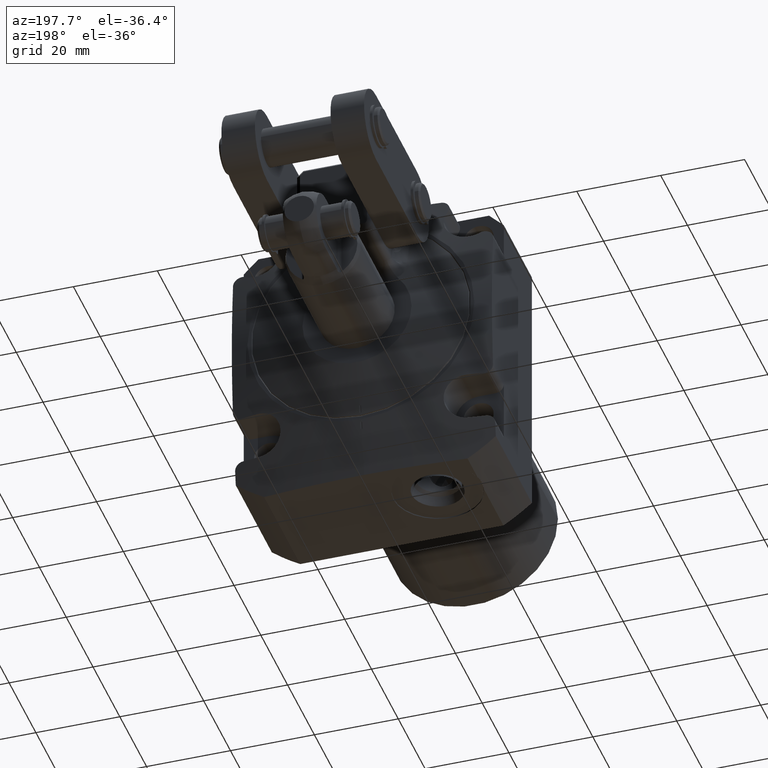
[diagram: clean part render]
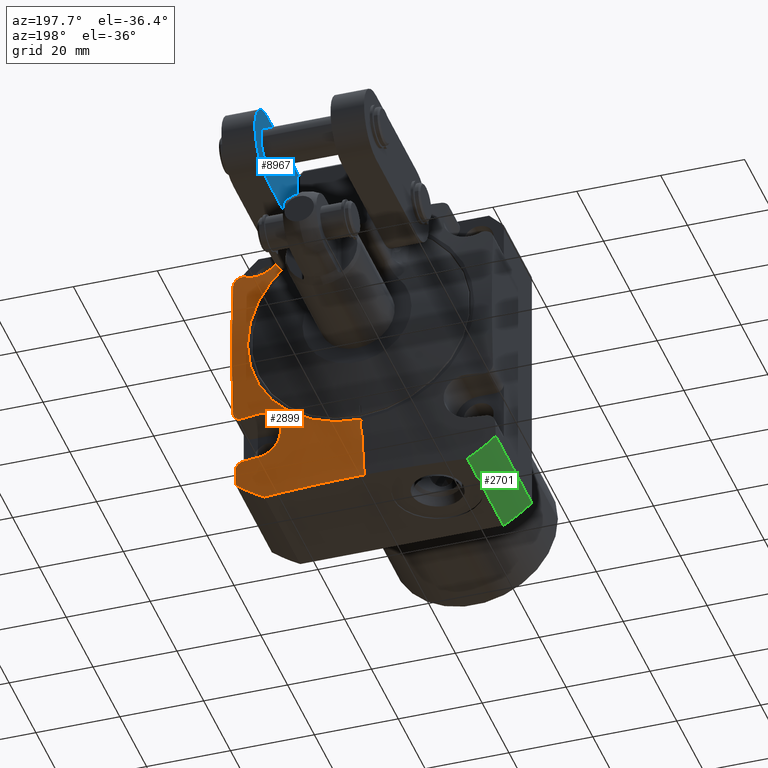
[diagram: same view with three faces highlighted in distinct colors, each labeled with its STEP entity id]
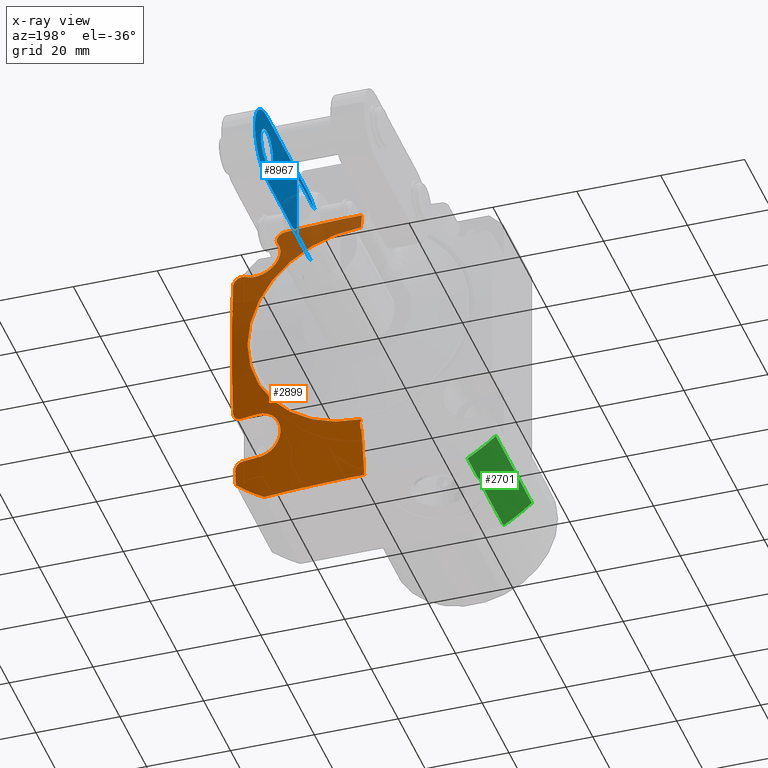
[diagram: x-ray of the same camera — body ghosted, the three highlighted faces saturated]
A machine part, auxiliary view with three faces highlighted in distinct colors.
The next image is the same camera in x-ray (body ghosted, the three faces saturated) — at least one of them is partly hidden behind the body in this view.
Their STEP definitions:

[orange] entity #2899 — the highlighted conical surface has half-angle 80 deg.
#714=CARTESIAN_POINT('',(0.E0,1.060175145626E0,0.E0));
#715=DIRECTION('',(0.E0,-1.E0,0.E0));
#716=DIRECTION('',(5.089433760253E-1,0.E0,-8.608E-1));
#717=AXIS2_PLACEMENT_3D('',#714,#715,#716);
#931=CARTESIAN_POINT('',(1.2204E0,1.060175145626E0,-1.423463677092E0));
#932=CARTESIAN_POINT('',(1.2204E0,1.063421422799E0,-1.399213120586E0));
#933=CARTESIAN_POINT('',(1.2204E0,1.069742382103E0,-1.351468564160E0));
#934=CARTESIAN_POINT('',(1.2204E0,1.075721235699E0,-1.305237271235E0));
#935=CARTESIAN_POINT('',(1.2204E0,1.078625608446E0,-1.2825E0));
#940=CARTESIAN_POINT('',(1.1414E0,1.098318896118E0,-1.2035E0));
#941=CARTESIAN_POINT('',(1.149647818973E0,1.097318126325E0,-1.2035E0));
#942=CARTESIAN_POINT('',(1.166153438891E0,1.094971450994E0,-1.206098933734E0));
#943=CARTESIAN_POINT('',(1.188614549425E0,1.090764848129E0,-1.217521549491E0));
#944=CARTESIAN_POINT('',(1.206424666769E0,1.086320344520E0,-1.235359772559E0));
#945=CARTESIAN_POINT('',(1.217797744459E0,1.082093038357E0,-1.257755515178E0));
#946=CARTESIAN_POINT('',(1.2204E0,1.079679064940E0,-1.274252874675E0));
#947=CARTESIAN_POINT('',(1.2204E0,1.078625608446E0,-1.2825E0));
#952=CARTESIAN_POINT('',(9.845E-1,1.116620899816E0,-1.2035E0));
#953=CARTESIAN_POINT('',(1.009786784821E0,1.113797767941E0,-1.2035E0));
#954=CARTESIAN_POINT('',(1.061223615380E0,1.107924712293E0,-1.2035E0));
#955=CARTESIAN_POINT('',(1.114386804775E0,1.101596609883E0,-1.2035E0));
#956=CARTESIAN_POINT('',(1.1414E0,1.098318896118E0,-1.2035E0));
#961=CARTESIAN_POINT('',(9.845E-1,1.170892829914E0,-7.655E-1));
#962=CARTESIAN_POINT('',(9.668143304058E-1,1.173354663069E0,-7.655E-1));
#963=CARTESIAN_POINT('',(9.315557886835E-1,1.177747081485E0,
-7.698032248155E-1));
#964=CARTESIAN_POINT('',(8.819775922452E-1,1.182234042671E0,
-7.885952571486E-1));
#965=CARTESIAN_POINT('',(8.384517070441E-1,1.184250302153E0,
-8.185069591678E-1));
#966=CARTESIAN_POINT('',(8.033352329886E-1,1.183633077884E0,
-8.577768332006E-1));
#967=CARTESIAN_POINT('',(7.784923121543E-1,1.180455211033E0,
-9.042053155698E-1));
#968=CARTESIAN_POINT('',(7.652755951321E-1,1.174960402367E0,
-9.555456877013E-1));
#969=CARTESIAN_POINT('',(7.646895459464E-1,1.167601425565E0,-1.008775834169E0));
#970=CARTESIAN_POINT('',(7.769415963294E-1,1.158927117389E0,-1.060904355173E0));
#971=CARTESIAN_POINT('',(8.015274974601E-1,1.149546714809E0,-1.108772061912E0));
#972=CARTESIAN_POINT('',(8.369666188078E-1,1.140096513913E0,-1.149293640645E0));
#973=CARTESIAN_POINT('',(8.811801277854E-1,1.131109945977E0,-1.180070046790E0));
#974=CARTESIAN_POINT('',(9.314120125367E-1,1.123070296904E0,-1.199201424619E0));
#975=CARTESIAN_POINT('',(9.668217543204E-1,1.118594579713E0,-1.2035E0));
#976=CARTESIAN_POINT('',(9.845E-1,1.116620899816E0,-1.2035E0));
#981=CARTESIAN_POINT('',(9.845E-1,1.170892829914E0,-7.655E-1));
#982=CARTESIAN_POINT('',(1.009208989631E0,1.167453355395E0,-7.655E-1));
#983=CARTESIAN_POINT('',(1.060068193900E0,1.160276079970E0,-7.655E-1));
#984=CARTESIAN_POINT('',(1.113809162796E0,1.152497149828E0,-7.655E-1));
#985=CARTESIAN_POINT('',(1.1414E0,1.148456694158E0,-7.655E-1));
#990=CARTESIAN_POINT('',(1.2204E0,1.143889002284E0,-6.865E-1));
#991=CARTESIAN_POINT('',(1.2204E0,1.143173726617E0,-6.947739921969E-1));
#992=CARTESIAN_POINT('',(1.217779690736E0,1.142126902009E0,-7.113075880267E-1));
#993=CARTESIAN_POINT('',(1.206396554363E0,1.141833451756E0,-7.336605200255E-1));
#994=CARTESIAN_POINT('',(1.188699582864E0,1.142835760369E0,-7.513968622548E-1));
#995=CARTESIAN_POINT('',(1.166340169948E0,1.145056959626E0,-7.628442139112E-1));
#996=CARTESIAN_POINT('',(1.149730314378E0,1.147236786776E0,-7.655E-1));
#997=CARTESIAN_POINT('',(1.1414E0,1.148456694158E0,-7.655E-1));
#1002=CARTESIAN_POINT('',(1.2204E0,1.143889002284E0,-6.865E-1));
#1003=CARTESIAN_POINT('',(1.2204E0,1.148546499479E0,-6.326241347934E-1));
#1004=CARTESIAN_POINT('',(1.2204E0,1.156939755457E0,-5.258073881625E-1));
#1005=CARTESIAN_POINT('',(1.2204E0,1.166441903024E0,-3.699236759738E-1));
#1006=CARTESIAN_POINT('',(1.2204E0,1.172891769748E0,-2.136911971545E-1));
#1007=CARTESIAN_POINT('',(1.2204E0,1.175962838828E0,-5.671395394722E-2));
#1008=CARTESIAN_POINT('',(1.2204E0,1.175459219762E0,1.006356168126E-1));
#1009=CARTESIAN_POINT('',(1.2204E0,1.171420262719E0,2.573233764488E-1));
#1010=CARTESIAN_POINT('',(1.2204E0,1.164089717237E0,4.132930508962E-1));
#1011=CARTESIAN_POINT('',(1.2204E0,1.153772732874E0,5.694767572134E-1));
#1012=CARTESIAN_POINT('',(1.2204E0,1.144852884703E0,6.768829739693E-1));
#1013=CARTESIAN_POINT('',(1.2204E0,1.139935231463E0,7.311496694299E-1));
#1018=CARTESIAN_POINT('',(1.099805704698E0,1.151160175604E0,7.983130120978E-1));
#1019=CARTESIAN_POINT('',(1.106687682307E0,1.149736679403E0,8.025750246413E-1));
#1020=CARTESIAN_POINT('',(1.121714485795E0,1.146933751959E0,8.089378837423E-1));
#1021=CARTESIAN_POINT('',(1.145998693723E0,1.143216238925E0,8.112463430883E-1));
#1022=CARTESIAN_POINT('',(1.169709458597E0,1.140301286755E0,8.062040799562E-1));
#1023=CARTESIAN_POINT('',(1.190783889815E0,1.138400543230E0,7.943591205923E-1));
#1024=CARTESIAN_POINT('',(1.207362850826E0,1.137654441237E0,7.767867941637E-1));
#1025=CARTESIAN_POINT('',(1.217957723005E0,1.138117197337E0,7.550904486226E-1));
#1026=CARTESIAN_POINT('',(1.2204E0,1.139211472772E0,7.391364042759E-1));
#1027=CARTESIAN_POINT('',(1.2204E0,1.139935231463E0,7.311496694299E-1));
#1032=CARTESIAN_POINT('',(7.981312834197E-1,1.151220946163E0,1.099511744966E0));
#1033=CARTESIAN_POINT('',(7.894609193710E-1,1.154123872259E0,1.085462009259E0));
#1034=CARTESIAN_POINT('',(7.753496372646E-1,1.159867103217E0,1.055462981855E0));
#1035=CARTESIAN_POINT('',(7.647945247882E-1,1.167839744292E0,1.006986781389E0));
#1036=CARTESIAN_POINT('',(7.653153428927E-1,1.174679013903E0,
9.575181744862E-1));
#1037=CARTESIAN_POINT('',(7.767571870162E-1,1.179916252696E0,
9.096517609083E-1));
#1038=CARTESIAN_POINT('',(7.983328507148E-1,1.183187631600E0,
8.657890649145E-1));
#1039=CARTESIAN_POINT('',(8.288943967029E-1,1.184279626647E0,
8.278674803769E-1));
#1040=CARTESIAN_POINT('',(8.669601251099E-1,1.183122291722E0,
7.976035423600E-1));
#1041=CARTESIAN_POINT('',(9.107718433823E-1,1.179808812352E0,
7.763761456664E-1));
#1042=CARTESIAN_POINT('',(9.584282178444E-1,1.174562815118E0,
7.652262813753E-1));
#1043=CARTESIAN_POINT('',(1.007628899861E0,1.167740237262E0,7.648791955473E-1));
#1044=CARTESIAN_POINT('',(1.055884556483E0,1.159790836035E0,7.755054912923E-1));
#1045=CARTESIAN_POINT('',(1.085790802442E0,1.154059074911E0,7.896335753704E-1));
#1046=CARTESIAN_POINT('',(1.099805704698E0,1.151160175604E0,7.983130120978E-1));
#1051=CARTESIAN_POINT('',(7.309023856579E-1,1.140018143830E0,1.22E0));
#1052=CARTESIAN_POINT('',(7.388832443451E-1,1.139294923201E0,1.22E0));
#1053=CARTESIAN_POINT('',(7.548255635522E-1,1.138201195409E0,1.217561347145E0));
#1054=CARTESIAN_POINT('',(7.765091805685E-1,1.137737441018E0,1.206981644710E0));
#1055=CARTESIAN_POINT('',(7.940774391229E-1,1.138480748190E0,1.190424952522E0));
#1056=CARTESIAN_POINT('',(8.059298247709E-1,1.140377184131E0,1.169375714302E0));
#1057=CARTESIAN_POINT('',(8.109920010367E-1,1.143286847002E0,1.145688176956E0));
#1058=CARTESIAN_POINT('',(8.087152687614E-1,1.146998850180E0,1.121419918563E0));
#1059=CARTESIAN_POINT('',(8.023792531289E-1,1.149798682686E0,1.106395291190E0));
#1060=CARTESIAN_POINT('',(7.981312834197E-1,1.151220946163E0,1.099511744966E0));
#1065=CARTESIAN_POINT('',(7.309023856579E-1,1.140018143830E0,1.22E0));
#1066=CARTESIAN_POINT('',(6.816108381505E-1,1.144484914314E0,1.22E0));
#1067=CARTESIAN_POINT('',(5.835666929756E-1,1.152700395229E0,1.22E0));
#1068=CARTESIAN_POINT('',(4.391587558445E-1,1.162574631623E0,1.22E0));
#1069=CARTESIAN_POINT('',(2.942020459427E-1,1.169973626509E0,1.22E0));
#1070=CARTESIAN_POINT('',(1.477942982665E-1,1.174607632466E0,1.22E0));
#1071=CARTESIAN_POINT('',(4.940557540758E-2,1.175669317990E0,1.22E0));
#1072=CARTESIAN_POINT('',(0.E0,1.175669317990E0,1.22E0));
#1077=CARTESIAN_POINT('',(9.581894481621E-3,1.197904117912E0,
-1.093858216876E0));
#1078=CARTESIAN_POINT('',(9.581856382222E-3,1.198227646636E0,
-1.092023324248E0));
#1079=CARTESIAN_POINT('',(8.654541716035E-3,1.198784797667E0,
-1.088872315171E0));
#1080=CARTESIAN_POINT('',(4.848736062113E-3,1.199433253563E0,
-1.085219994765E0));
#1081=CARTESIAN_POINT('',(1.769691299536E-3,1.199579130900E0,
-1.084400712734E0));
#1082=CARTESIAN_POINT('',(0.E0,1.199579130900E0,-1.084400712734E0));
#1087=CARTESIAN_POINT('',(9.583054859522E-3,1.187521949368E0,
-1.152740554533E0));
#1088=CARTESIAN_POINT('',(9.582932193043E-3,1.188678350267E0,
-1.146182053536E0));
#1089=CARTESIAN_POINT('',(9.582682887297E-3,1.190989267719E0,
-1.133075730910E0));
#1090=CARTESIAN_POINT('',(9.582296413478E-3,1.194449990667E0,
-1.113448285042E0));
#1091=CARTESIAN_POINT('',(9.582029995993E-3,1.196753370346E0,
-1.100384679821E0));
#1092=CARTESIAN_POINT('',(9.581894481621E-3,1.197904117912E0,
-1.093858216876E0));
#1097=CARTESIAN_POINT('',(0.E0,1.185860924864E0,-1.162200525222E0));
#1098=CARTESIAN_POINT('',(1.290244222060E-3,1.185860924864E0,
-1.162200525222E0));
#1099=CARTESIAN_POINT('',(3.677470122624E-3,1.185944429979E0,
-1.161722825721E0));
#1100=CARTESIAN_POINT('',(6.894440095293E-3,1.186302944848E0,
-1.159674332463E0));
#1101=CARTESIAN_POINT('',(9.060433416783E-3,1.186861269840E0,
-1.156492082173E0));
#1102=CARTESIAN_POINT('',(9.583079660779E-3,1.187288143069E0,
-1.154066581559E0));
#1103=CARTESIAN_POINT('',(9.583054859522E-3,1.187521949368E0,
-1.152740554533E0));
#1108=CARTESIAN_POINT('',(0.E0,1.106196487591E0,-1.614E0));
#1109=CARTESIAN_POINT('',(8.026069538089E-2,1.106196487591E0,-1.614E0));
#1110=CARTESIAN_POINT('',(2.400798916781E-1,1.104076970360E0,-1.614E0));
#1111=CARTESIAN_POINT('',(4.779586701204E-1,1.094875415823E0,-1.614E0));
#1112=CARTESIAN_POINT('',(7.132182849738E-1,1.080432964392E0,-1.614E0));
#1113=CARTESIAN_POINT('',(8.736129599570E-1,1.067413239610E0,-1.614E0));
#1114=CARTESIAN_POINT('',(9.542688300474E-1,1.060175145626E0,-1.614E0));
#1403=CARTESIAN_POINT('',(0.E0,1.106196487591E0,-1.614E0));
#1408=DIRECTION('',(0.E0,-1.736481776669E-1,-9.848077530122E-1));
#1409=VECTOR('',#1408,4.587692099253E-1);
#1410=CARTESIAN_POINT('',(0.E0,1.185860924864E0,-1.162200525222E0));
#1411=LINE('',#1410,#1409);
#1447=DIRECTION('',(-1.575943921262E-14,-1.736481776669E-1,-9.848077530122E-1));
#1448=VECTOR('',#1447,1.97E-2);
#1449=CARTESIAN_POINT('',(0.E0,1.203E0,-1.065E0));
#1450=LINE('',#1449,#1448);
#1454=DIRECTION('',(0.E0,-1.736481776669E-1,9.848077530122E-1));
#1455=VECTOR('',#1454,1.573911248423E-1);
#1456=CARTESIAN_POINT('',(0.E0,1.203E0,1.065E0));
#1457=LINE('',#1456,#1455);
#1645=CARTESIAN_POINT('',(0.E0,1.203E0,0.E0));
#1646=DIRECTION('',(0.E0,-1.E0,0.E0));
#1647=DIRECTION('',(0.E0,0.E0,-1.E0));
#1648=AXIS2_PLACEMENT_3D('',#1645,#1646,#1647);
#1894=CARTESIAN_POINT('',(9.542688300474E-1,1.060175145626E0,-1.614E0));
#1895=VERTEX_POINT('',#1894);
#1896=CARTESIAN_POINT('',(1.2204E0,1.060175145626E0,-1.423463677092E0));
#1897=VERTEX_POINT('',#1896);
#1952=CARTESIAN_POINT('',(0.E0,1.203E0,-1.065E0));
#1953=CARTESIAN_POINT('',(0.E0,1.203E0,1.065E0));
#1954=VERTEX_POINT('',#1952);
#1955=VERTEX_POINT('',#1953);
#1956=VERTEX_POINT('',#1403);
#1959=CARTESIAN_POINT('',(0.E0,1.175669317990E0,1.22E0));
#1960=VERTEX_POINT('',#1959);
#1990=CARTESIAN_POINT('',(9.845E-1,1.170892829914E0,-7.655E-1));
#1991=VERTEX_POINT('',#1990);
#1992=CARTESIAN_POINT('',(9.845E-1,1.116620899816E0,-1.2035E0));
#1993=VERTEX_POINT('',#1992);
#2006=CARTESIAN_POINT('',(1.099805704698E0,1.151160175604E0,7.983130120978E-1));
#2008=VERTEX_POINT('',#2006);
#2010=VERTEX_POINT('',#1027);
#2013=CARTESIAN_POINT('',(1.1414E0,1.148456694158E0,-7.655E-1));
#2014=VERTEX_POINT('',#2013);
#2015=CARTESIAN_POINT('',(1.2204E0,1.143889002284E0,-6.865E-1));
#2016=VERTEX_POINT('',#2015);
#2021=VERTEX_POINT('',#1032);
#2048=VERTEX_POINT('',#1077);
#2049=VERTEX_POINT('',#1082);
#2050=VERTEX_POINT('',#1087);
#2051=VERTEX_POINT('',#1097);
#2059=VERTEX_POINT('',#935);
#2060=VERTEX_POINT('',#956);
#2144=VERTEX_POINT('',#1051);
#2858=CARTESIAN_POINT('',(0.E0,1.131587572813E0,0.E0));
#2859=DIRECTION('',(0.E0,-1.E0,0.E0));
#2860=DIRECTION('',(0.E0,0.E0,1.E0));
#2861=AXIS2_PLACEMENT_3D('',#2858,#2859,#2860);
#2862=CONICAL_SURFACE('',#2861,1.47E0,8.E1);
#2863=ORIENTED_EDGE('',*,*,#2711,.T.);
#2865=ORIENTED_EDGE('',*,*,#2864,.F.);
#2867=ORIENTED_EDGE('',*,*,#2866,.F.);
#2869=ORIENTED_EDGE('',*,*,#2868,.F.);
#2871=ORIENTED_EDGE('',*,*,#2870,.T.);
#2873=ORIENTED_EDGE('',*,*,#2872,.F.);
#2874=ORIENTED_EDGE('',*,*,#2721,.T.);
#2875=ORIENTED_EDGE('',*,*,#2851,.F.);
#2876=ORIENTED_EDGE('',*,*,#2840,.F.);
#2878=ORIENTED_EDGE('',*,*,#2877,.F.);
#2880=ORIENTED_EDGE('',*,*,#2879,.T.);
#2882=ORIENTED_EDGE('',*,*,#2881,.F.);
#2884=ORIENTED_EDGE('',*,*,#2883,.F.);
#2886=ORIENTED_EDGE('',*,*,#2885,.T.);
#2888=ORIENTED_EDGE('',*,*,#2887,.F.);
#2890=ORIENTED_EDGE('',*,*,#2889,.F.);
#2892=ORIENTED_EDGE('',*,*,#2891,.F.);
#2894=ORIENTED_EDGE('',*,*,#2893,.T.);
#2895=ORIENTED_EDGE('',*,*,#2642,.T.);
#2896=ORIENTED_EDGE('',*,*,#2679,.T.);
#2897=EDGE_LOOP('',(#2863,#2865,#2867,#2869,#2871,#2873,#2874,#2875,#2876,#2878,
#2880,#2882,#2884,#2886,#2888,#2890,#2892,#2894,#2895,#2896));
#2898=FACE_OUTER_BOUND('',#2897,.F.);
#718=CIRCLE('',#717,1.875E0);
#936=B_SPLINE_CURVE_WITH_KNOTS('',3,(#931,#932,#933,#934,#935),.UNSPECIFIED.,
.F.,.F.,(4,1,4),(0.E0,5.E-1,1.E0),.UNSPECIFIED.);
#948=B_SPLINE_CURVE_WITH_KNOTS('',3,(#940,#941,#942,#943,#944,#945,#946,#947),
.UNSPECIFIED.,.F.,.F.,(4,1,1,1,1,4),(0.E0,2.E-1,4.E-1,6.E-1,8.E-1,1.E0),
.UNSPECIFIED.);
#957=B_SPLINE_CURVE_WITH_KNOTS('',3,(#952,#953,#954,#955,#956),.UNSPECIFIED.,
.F.,.F.,(4,1,4),(0.E0,5.E-1,1.E0),.UNSPECIFIED.);
#977=B_SPLINE_CURVE_WITH_KNOTS('',3,(#961,#962,#963,#964,#965,#966,#967,#968,
#969,#970,#971,#972,#973,#974,#975,#976),.UNSPECIFIED.,.F.,.F.,(4,1,1,1,1,1,1,1,
1,1,1,1,1,4),(0.E0,7.692307692308E-2,1.538461538462E-1,2.307692307692E-1,
3.076923076923E-1,3.846153846154E-1,4.615384615385E-1,5.384615384615E-1,
6.153846153846E-1,6.923076923077E-1,7.692307692308E-1,8.461538461538E-1,
9.230769230769E-1,1.E0),.UNSPECIFIED.);
#986=B_SPLINE_CURVE_WITH_KNOTS('',3,(#981,#982,#983,#984,#985),.UNSPECIFIED.,
.F.,.F.,(4,1,4),(0.E0,5.E-1,1.E0),.UNSPECIFIED.);
#998=B_SPLINE_CURVE_WITH_KNOTS('',3,(#990,#991,#992,#993,#994,#995,#996,#997),
.UNSPECIFIED.,.F.,.F.,(4,1,1,1,1,4),(0.E0,2.E-1,4.E-1,6.E-1,8.E-1,1.E0),
.UNSPECIFIED.);
#1014=B_SPLINE_CURVE_WITH_KNOTS('',3,(#1002,#1003,#1004,#1005,#1006,#1007,#1008,
#1009,#1010,#1011,#1012,#1013),.UNSPECIFIED.,.F.,.F.,(4,1,1,1,1,1,1,1,1,4),
(0.E0,1.111111111111E-1,2.222222222222E-1,3.333333333333E-1,4.444444444444E-1,
5.555555555556E-1,6.666666666667E-1,7.777777777778E-1,8.888888888889E-1,1.E0),
.UNSPECIFIED.);
#1028=B_SPLINE_CURVE_WITH_KNOTS('',3,(#1018,#1019,#1020,#1021,#1022,#1023,#1024,
#1025,#1026,#1027),.UNSPECIFIED.,.F.,.F.,(4,1,1,1,1,1,1,4),(0.E0,
1.428571428571E-1,2.857142857143E-1,4.285714285714E-1,5.714285714286E-1,
7.142857142857E-1,8.571428571429E-1,1.E0),.UNSPECIFIED.);
#1047=B_SPLINE_CURVE_WITH_KNOTS('',3,(#1032,#1033,#1034,#1035,#1036,#1037,#1038,
#1039,#1040,#1041,#1042,#1043,#1044,#1045,#1046),.UNSPECIFIED.,.F.,.F.,(4,1,1,1,
1,1,1,1,1,1,1,1,4),(0.E0,8.333333333333E-2,1.666666666667E-1,2.5E-1,
3.333333333333E-1,4.166666666667E-1,5.E-1,5.833333333333E-1,6.666666666667E-1,
7.5E-1,8.333333333333E-1,9.166666666667E-1,1.E0),.UNSPECIFIED.);
#1061=B_SPLINE_CURVE_WITH_KNOTS('',3,(#1051,#1052,#1053,#1054,#1055,#1056,#1057,
#1058,#1059,#1060),.UNSPECIFIED.,.F.,.F.,(4,1,1,1,1,1,1,4),(0.E0,
1.428571428571E-1,2.857142857143E-1,4.285714285714E-1,5.714285714286E-1,
7.142857142857E-1,8.571428571429E-1,1.E0),.UNSPECIFIED.);
#1073=B_SPLINE_CURVE_WITH_KNOTS('',3,(#1065,#1066,#1067,#1068,#1069,#1070,#1071,
#1072),.UNSPECIFIED.,.F.,.F.,(4,1,1,1,1,4),(0.E0,2.E-1,4.E-1,6.E-1,8.E-1,1.E0),
.UNSPECIFIED.);
#1083=B_SPLINE_CURVE_WITH_KNOTS('',3,(#1077,#1078,#1079,#1080,#1081,#1082),
.UNSPECIFIED.,.F.,.F.,(4,1,1,4),(0.E0,3.333333333333E-1,6.666666666667E-1,1.E0),
.UNSPECIFIED.);
#1093=B_SPLINE_CURVE_WITH_KNOTS('',3,(#1087,#1088,#1089,#1090,#1091,#1092),
.UNSPECIFIED.,.F.,.F.,(4,1,1,4),(0.E0,3.333333333333E-1,6.666666666667E-1,1.E0),
.UNSPECIFIED.);
#1104=B_SPLINE_CURVE_WITH_KNOTS('',3,(#1097,#1098,#1099,#1100,#1101,#1102,
#1103),.UNSPECIFIED.,.F.,.F.,(4,1,1,1,4),(0.E0,2.5E-1,5.E-1,7.5E-1,1.E0),
.UNSPECIFIED.);
#1115=B_SPLINE_CURVE_WITH_KNOTS('',3,(#1108,#1109,#1110,#1111,#1112,#1113,
#1114),.UNSPECIFIED.,.F.,.F.,(4,1,1,1,4),(0.E0,2.5E-1,5.E-1,7.5E-1,1.E0),
.UNSPECIFIED.);
#1649=CIRCLE('',#1648,1.065E0);
#2642=EDGE_CURVE('',#1956,#1895,#1115,.T.);
#2679=EDGE_CURVE('',#1895,#1897,#718,.T.);
#2711=EDGE_CURVE('',#1897,#2059,#936,.T.);
#2721=EDGE_CURVE('',#2016,#2010,#1014,.T.);
#2840=EDGE_CURVE('',#2021,#2008,#1047,.T.);
#2851=EDGE_CURVE('',#2008,#2010,#1028,.T.);
#2864=EDGE_CURVE('',#2060,#2059,#948,.T.);
#2866=EDGE_CURVE('',#1993,#2060,#957,.T.);
#2868=EDGE_CURVE('',#1991,#1993,#977,.T.);
#2870=EDGE_CURVE('',#1991,#2014,#986,.T.);
#2872=EDGE_CURVE('',#2016,#2014,#998,.T.);
#2877=EDGE_CURVE('',#2144,#2021,#1061,.T.);
#2879=EDGE_CURVE('',#2144,#1960,#1073,.T.);
#2881=EDGE_CURVE('',#1955,#1960,#1457,.T.);
#2883=EDGE_CURVE('',#1954,#1955,#1649,.T.);
#2885=EDGE_CURVE('',#1954,#2049,#1450,.T.);
#2887=EDGE_CURVE('',#2048,#2049,#1083,.T.);
#2889=EDGE_CURVE('',#2050,#2048,#1093,.T.);
#2891=EDGE_CURVE('',#2051,#2050,#1104,.T.);
#2893=EDGE_CURVE('',#2051,#1956,#1411,.T.);
#2899=ADVANCED_FACE('',(#2898),#2862,.T.);

[blue] entity #8967 — the highlighted planar face has unit normal (1, 0, 0).
#4942=CARTESIAN_POINT('',(3.545E-1,8.27E-1,8.66E-1));
#4943=DIRECTION('',(1.E0,0.E0,0.E0));
#4944=DIRECTION('',(0.E0,-2.511052026426E-1,-9.679598014411E-1));
#4945=AXIS2_PLACEMENT_3D('',#4942,#4943,#4944);
#4950=DIRECTION('',(0.E0,9.999999932875E-1,-1.158664188529E-4));
#4951=VECTOR('',#4950,1.201E0);
#4952=CARTESIAN_POINT('',(3.545E-1,8.269589253545E-1,5.115000023796E-1));
#4953=LINE('',#4952,#4951);
#4957=CARTESIAN_POINT('',(3.545E-1,2.027999991938E0,8.658608444310E-1));
#4958=DIRECTION('',(1.E0,0.E0,0.E0));
#4959=DIRECTION('',(0.E0,-1.158664188534E-4,-9.999999932875E-1));
#4960=AXIS2_PLACEMENT_3D('',#4957,#4958,#4959);
#4965=DIRECTION('',(0.E0,-9.999999932875E-1,1.158664188528E-4));
#4966=VECTOR('',#4965,1.201E0);
#4967=CARTESIAN_POINT('',(3.545E-1,2.028041066584E0,1.220360842051E0));
#4968=LINE('',#4967,#4966);
#4972=CARTESIAN_POINT('',(3.545E-1,8.27E-1,8.66E-1));
#4973=DIRECTION('',(1.E0,0.E0,0.E0));
#4974=DIRECTION('',(0.E0,1.158664188465E-4,9.999999932875E-1));
#4975=AXIS2_PLACEMENT_3D('',#4972,#4973,#4974);
#4980=CARTESIAN_POINT('',(3.545E-1,2.027999991938E0,8.658608444310E-1));
#4981=DIRECTION('',(-1.E0,0.E0,0.E0));
#4982=DIRECTION('',(0.E0,-9.999999932875E-1,1.158664188530E-4));
#4983=AXIS2_PLACEMENT_3D('',#4980,#4981,#4982);
#4988=CARTESIAN_POINT('',(3.545E-1,2.027999991938E0,8.658608444310E-1));
#4989=DIRECTION('',(-1.E0,0.E0,0.E0));
#4990=DIRECTION('',(0.E0,9.999999932875E-1,-1.158664188524E-4));
#4991=AXIS2_PLACEMENT_3D('',#4988,#4989,#4990);
#4996=DIRECTION('',(0.E0,1.436584691746E-6,9.999999999990E-1));
#4997=VECTOR('',#4996,6.391417489259E-1);
#4998=CARTESIAN_POINT('',(3.545E-1,1.141999081819E0,5.228582510747E-1));
#4999=LINE('',#4998,#4997);
#5010=DIRECTION('',(0.E0,-1.E0,0.E0));
#5011=VECTOR('',#5010,5.100749855825E-1);
#5012=CARTESIAN_POINT('',(3.545E-1,1.142E0,1.162E0));
#5013=LINE('',#5012,#5011);
#5095=DIRECTION('',(0.E0,1.E0,1.696897942325E-9));
#5096=VECTOR('',#5095,4.040158761550E-1);
#5097=CARTESIAN_POINT('',(3.545E-1,7.379832056637E-1,5.228582503891E-1));
#5098=LINE('',#5097,#5096);
#8205=CARTESIAN_POINT('',(3.545E-1,2.028041066584E0,1.220360842051E0));
#8206=CARTESIAN_POINT('',(3.545E-1,8.270410746455E-1,1.220499997620E0));
#8207=VERTEX_POINT('',#8205);
#8208=VERTEX_POINT('',#8206);
#8209=CARTESIAN_POINT('',(3.545E-1,8.269589253545E-1,5.115000023796E-1));
#8210=CARTESIAN_POINT('',(3.545E-1,2.027958917293E0,5.113608468105E-1));
#8211=VERTEX_POINT('',#8209);
#8212=VERTEX_POINT('',#8210);
#8221=CARTESIAN_POINT('',(3.545E-1,6.319250144175E-1,1.162E0));
#8222=CARTESIAN_POINT('',(3.545E-1,7.379832056632E-1,5.228582503891E-1));
#8223=VERTEX_POINT('',#8221);
#8224=VERTEX_POINT('',#8222);
#8225=CARTESIAN_POINT('',(3.545E-1,1.141999081819E0,5.228582510747E-1));
#8226=CARTESIAN_POINT('',(3.545E-1,1.142E0,1.162E0));
#8227=VERTEX_POINT('',#8225);
#8228=VERTEX_POINT('',#8226);
#8337=CARTESIAN_POINT('',(3.545E-1,2.204999990750E0,8.658403360748E-1));
#8339=VERTEX_POINT('',#8337);
#8345=CARTESIAN_POINT('',(3.545E-1,1.850999993126E0,8.658813527871E-1));
#8347=VERTEX_POINT('',#8345);
#8939=CARTESIAN_POINT('',(3.545E-1,0.E0,0.E0));
#8940=DIRECTION('',(1.E0,0.E0,0.E0));
#8941=DIRECTION('',(0.E0,0.E0,-1.E0));
#8942=AXIS2_PLACEMENT_3D('',#8939,#8940,#8941);
#8943=PLANE('',#8942);
#8945=ORIENTED_EDGE('',*,*,#8944,.F.);
#8947=ORIENTED_EDGE('',*,*,#8946,.F.);
#8949=ORIENTED_EDGE('',*,*,#8948,.T.);
#8951=ORIENTED_EDGE('',*,*,#8950,.T.);
#8953=ORIENTED_EDGE('',*,*,#8952,.T.);
#8954=ORIENTED_EDGE('',*,*,#8929,.T.);
#8956=ORIENTED_EDGE('',*,*,#8955,.T.);
#8958=ORIENTED_EDGE('',*,*,#8957,.F.);
#8959=EDGE_LOOP('',(#8945,#8947,#8949,#8951,#8953,#8954,#8956,#8958));
#8960=FACE_OUTER_BOUND('',#8959,.F.);
#8962=ORIENTED_EDGE('',*,*,#8961,.T.);
#8964=ORIENTED_EDGE('',*,*,#8963,.T.);
#8965=EDGE_LOOP('',(#8962,#8964));
#8966=FACE_BOUND('',#8965,.F.);
#4946=CIRCLE('',#4945,3.545E-1);
#4961=CIRCLE('',#4960,3.545E-1);
#4976=CIRCLE('',#4975,3.545E-1);
#4984=CIRCLE('',#4983,1.77E-1);
#4992=CIRCLE('',#4991,1.77E-1);
#8929=EDGE_CURVE('',#8207,#8208,#4968,.T.);
#8944=EDGE_CURVE('',#8227,#8228,#4999,.T.);
#8946=EDGE_CURVE('',#8224,#8227,#5098,.T.);
#8948=EDGE_CURVE('',#8224,#8211,#4946,.T.);
#8950=EDGE_CURVE('',#8211,#8212,#4953,.T.);
#8952=EDGE_CURVE('',#8212,#8207,#4961,.T.);
#8955=EDGE_CURVE('',#8208,#8223,#4976,.T.);
#8957=EDGE_CURVE('',#8228,#8223,#5013,.T.);
#8961=EDGE_CURVE('',#8347,#8339,#4984,.T.);
#8963=EDGE_CURVE('',#8339,#8347,#4992,.T.);
#8967=ADVANCED_FACE('',(#8960,#8966),#8943,.F.);

[green] entity #2701 — the highlighted cylindrical surface (partial cylindrical patch) has radius 47.625 mm, axis along (0, -1, 0).
#722=CARTESIAN_POINT('',(-9.66E-1,6.7E-1,-1.607006222763E0));
#723=CARTESIAN_POINT('',(-9.66E-1,6.537577690059E-1,-1.607006222763E0));
#724=CARTESIAN_POINT('',(-9.641009445142E-1,6.211925891284E-1,
-1.608150075372E0));
#725=CARTESIAN_POINT('',(-9.582542139982E-1,5.884280978860E-1,
-1.611643663147E0));
#726=CARTESIAN_POINT('',(-9.542688300474E-1,5.720242340565E-1,-1.614E0));
#731=CARTESIAN_POINT('',(-9.542688300474E-1,7.679757659435E-1,-1.614E0));
#732=CARTESIAN_POINT('',(-9.582525226963E-1,7.515788635225E-1,
-1.611644663121E0));
#733=CARTESIAN_POINT('',(-9.640992180592E-1,7.188220090316E-1,
-1.608151115245E0));
#734=CARTESIAN_POINT('',(-9.66E-1,6.862494601487E-1,-1.607006222763E0));
#735=CARTESIAN_POINT('',(-9.66E-1,6.7E-1,-1.607006222763E0));
#740=DIRECTION('',(0.E0,-1.E0,0.E0));
#741=VECTOR('',#740,2.921993796826E-1);
#742=CARTESIAN_POINT('',(-9.542688300474E-1,1.060175145626E0,-1.614E0));
#743=LINE('',#742,#741);
#747=CARTESIAN_POINT('',(0.E0,1.060175145626E0,0.E0));
#748=DIRECTION('',(0.E0,-1.E0,0.E0));
#749=DIRECTION('',(-6.5088E-1,0.E0,-7.591806277823E-1));
#750=AXIS2_PLACEMENT_3D('',#747,#748,#749);
#755=DIRECTION('',(0.E0,-1.E0,0.E0));
#756=VECTOR('',#755,1.060175145626E0);
#757=CARTESIAN_POINT('',(-1.2204E0,1.060175145626E0,-1.423463677092E0));
#758=LINE('',#757,#756);
#762=CARTESIAN_POINT('',(0.E0,0.E0,0.E0));
#763=DIRECTION('',(0.E0,-1.E0,0.E0));
#764=DIRECTION('',(-6.5088E-1,0.E0,-7.591806277823E-1));
#765=AXIS2_PLACEMENT_3D('',#762,#763,#764);
#770=DIRECTION('',(0.E0,-1.E0,0.E0));
#771=VECTOR('',#770,5.720242340565E-1);
#772=CARTESIAN_POINT('',(-9.542688300474E-1,5.720242340565E-1,-1.614E0));
#773=LINE('',#772,#771);
#1886=CARTESIAN_POINT('',(-9.542688300474E-1,0.E0,-1.614E0));
#1888=VERTEX_POINT('',#1886);
#1898=CARTESIAN_POINT('',(-1.2204E0,0.E0,-1.423463677092E0));
#1899=VERTEX_POINT('',#1898);
#1928=VERTEX_POINT('',#722);
#1929=VERTEX_POINT('',#726);
#1932=CARTESIAN_POINT('',(-9.542688300474E-1,7.679757659435E-1,-1.614E0));
#1933=VERTEX_POINT('',#1932);
#1934=CARTESIAN_POINT('',(-9.542688300474E-1,1.060175145626E0,-1.614E0));
#1935=VERTEX_POINT('',#1934);
#1957=CARTESIAN_POINT('',(-1.2204E0,1.060175145626E0,-1.423463677092E0));
#1958=VERTEX_POINT('',#1957);
#2684=CARTESIAN_POINT('',(0.E0,1.371E0,0.E0));
#2685=DIRECTION('',(0.E0,-1.E0,0.E0));
#2686=DIRECTION('',(-1.E0,0.E0,0.E0));
#2687=AXIS2_PLACEMENT_3D('',#2684,#2685,#2686);
#2688=CYLINDRICAL_SURFACE('',#2687,1.875E0);
#2689=ORIENTED_EDGE('',*,*,#2658,.F.);
#2691=ORIENTED_EDGE('',*,*,#2690,.F.);
#2692=ORIENTED_EDGE('',*,*,#2646,.F.);
#2694=ORIENTED_EDGE('',*,*,#2693,.F.);
#2696=ORIENTED_EDGE('',*,*,#2695,.T.);
#2697=ORIENTED_EDGE('',*,*,#2484,.T.);
#2698=ORIENTED_EDGE('',*,*,#2637,.F.);
#2699=EDGE_LOOP('',(#2689,#2691,#2692,#2694,#2696,#2697,#2698));
#2700=FACE_OUTER_BOUND('',#2699,.F.);
#727=B_SPLINE_CURVE_WITH_KNOTS('',3,(#722,#723,#724,#725,#726),.UNSPECIFIED.,
.F.,.F.,(4,1,4),(0.E0,5.E-1,1.E0),.UNSPECIFIED.);
#736=B_SPLINE_CURVE_WITH_KNOTS('',3,(#731,#732,#733,#734,#735),.UNSPECIFIED.,
.F.,.F.,(4,1,4),(0.E0,5.E-1,1.E0),.UNSPECIFIED.);
#751=CIRCLE('',#750,1.875E0);
#766=CIRCLE('',#765,1.875E0);
#2484=EDGE_CURVE('',#1899,#1888,#766,.T.);
#2637=EDGE_CURVE('',#1929,#1888,#773,.T.);
#2646=EDGE_CURVE('',#1935,#1933,#743,.T.);
#2658=EDGE_CURVE('',#1928,#1929,#727,.T.);
#2690=EDGE_CURVE('',#1933,#1928,#736,.T.);
#2693=EDGE_CURVE('',#1958,#1935,#751,.T.);
#2695=EDGE_CURVE('',#1958,#1899,#758,.T.);
#2701=ADVANCED_FACE('',(#2700),#2688,.T.);